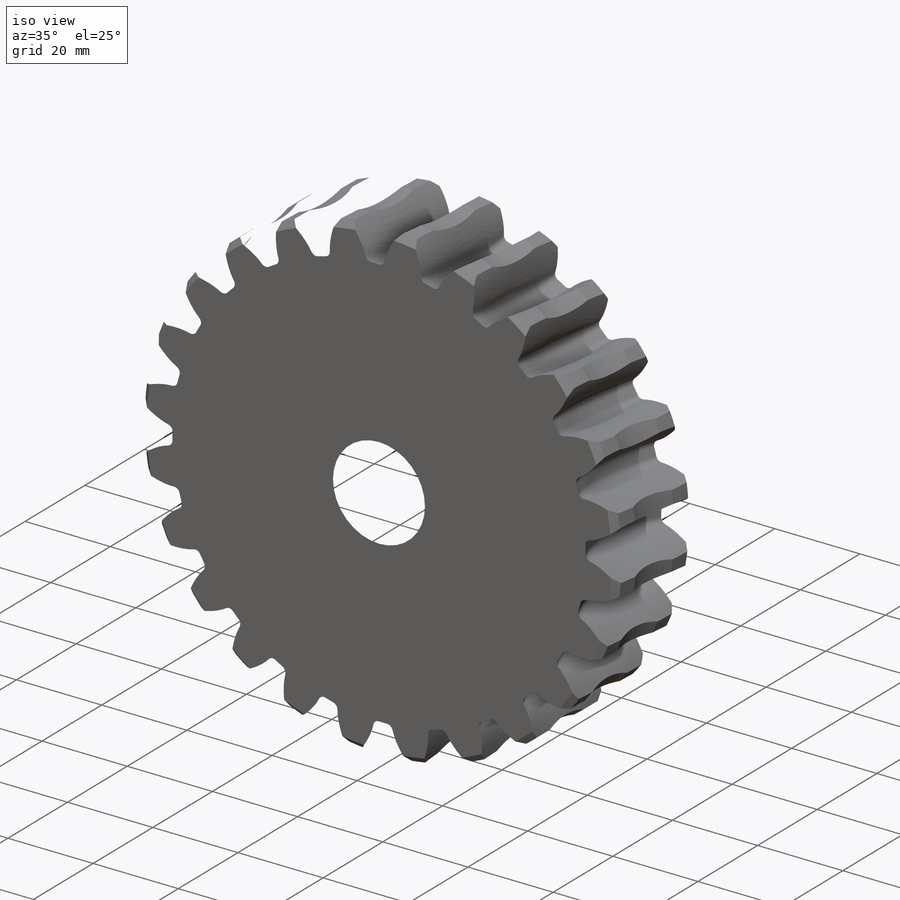
[diagram: iso view]
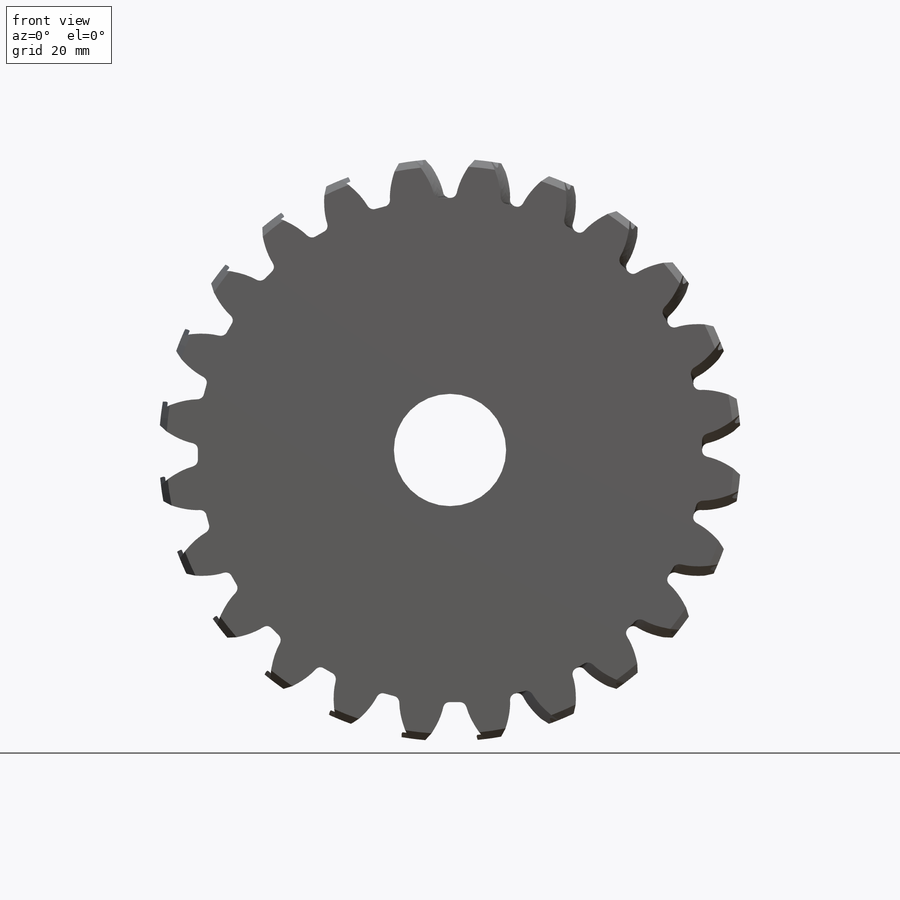
[diagram: front view]
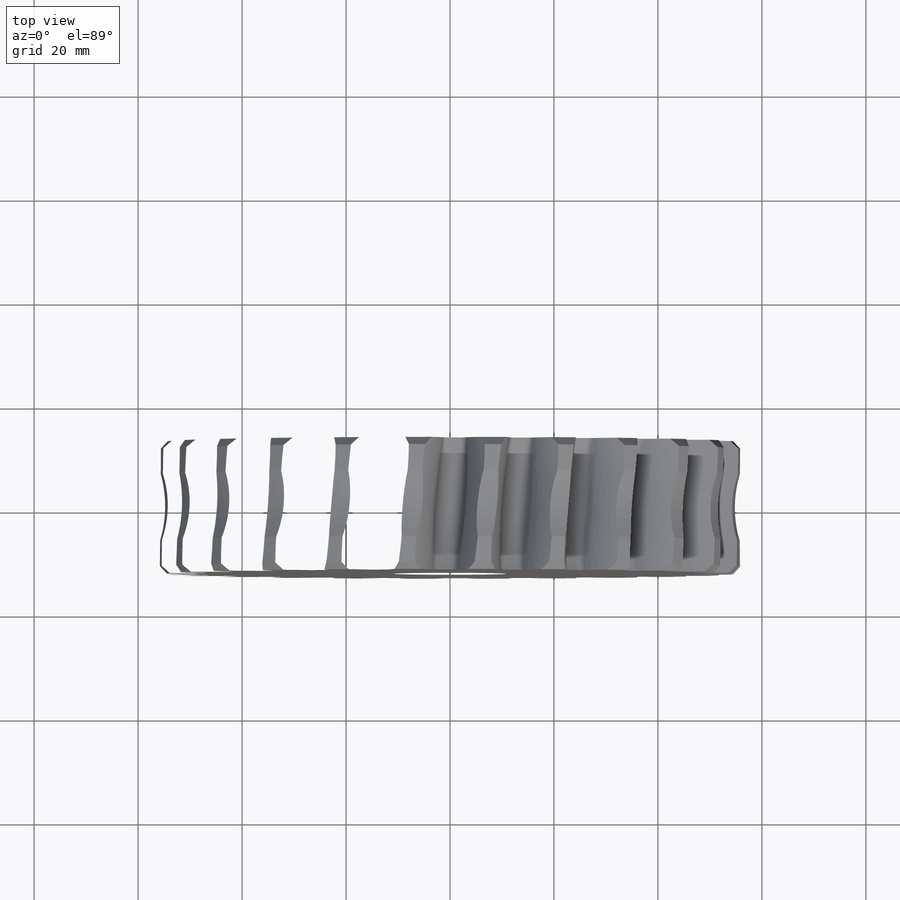
[diagram: top view]
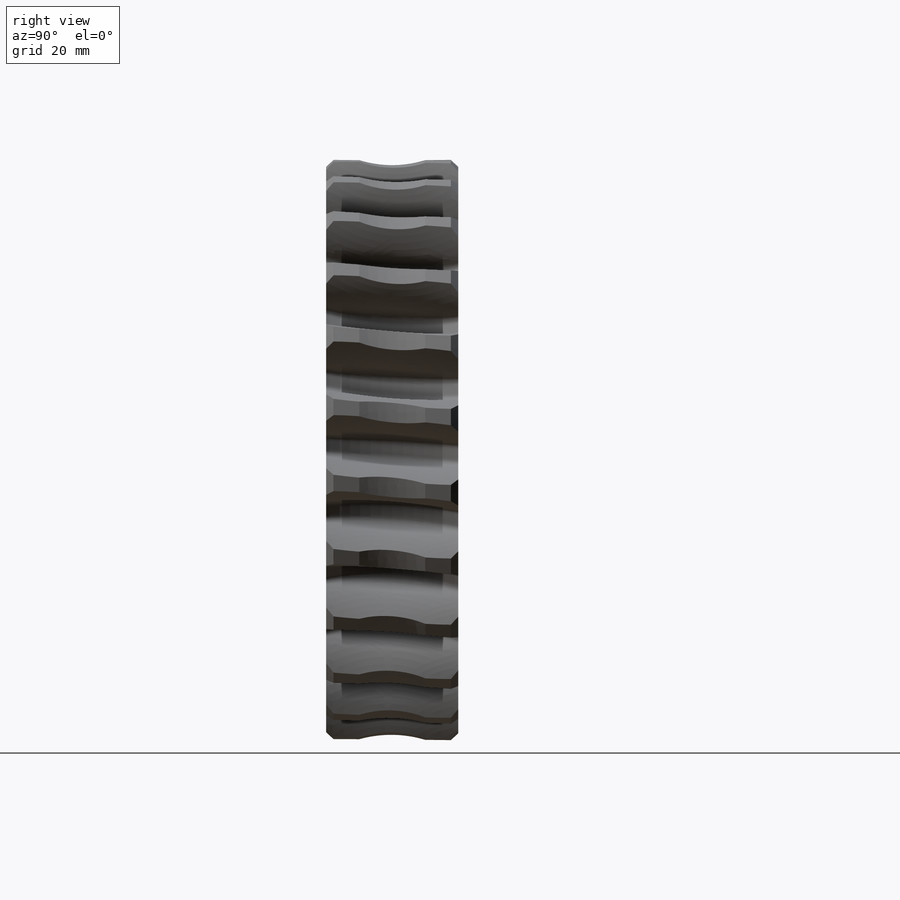
[diagram: right view]
SOLIDWORKS PART (.sldprt)
format: sldprt  version: not decoded by parser v0  size: 1,629,184 bytes
history: native  units: mm
features: sketch x13, plane x10, revolve x2, material x1, pattern_circular x1, cut_revolve x1, chamfer x1, fillet x1 + 2 further entries (+14 scaffold rows collapsed)
feature tree (46):
  scaffold x14  (default folders/planes/origin — collapsed)
  material  "Plain Carbon Steel"
  "Design Table"
  sketch  "SketchRevolveWorm01"  dims[ThroatDiameter=~42.630123mm Side1=12.7mm ChamferX=~1.41224mm ChamferY=~1.41224mm OutsideDiameter=~56.001175mm ThroatDistance=~20.347219mm FaceWidth=25.4mm]
  revolve  "Worm01"  Angle=360deg
  plane  "Plane1"  Offset=76.348395mm
  "Axis2"
  plane  "Plane2"
  sketch  "WheelToothSketch0"
  plane  "Plane3"
  sketch  "WheelToothSketch1"
  plane  "Plane4"
  sketch  "WheelToothSketch2"
  plane  "Plane5"
  sketch  "WheelToothSketch3"
  plane  "Plane6"
  sketch  "WheelToothSketch4"
  plane  "Plane7"
  sketch  "WheelToothSketch5"
  plane  "Plane8"
  sketch  "WheelToothSketch6"
  plane  "Plane9"
  sketch  "WheelToothSketch7"
  plane  "Plane10"
  sketch  "WheelToothSketch8"
  pattern_circular  "PatternWorm01"  Count=24 Angle=15deg
  sketch  "HubSketchSide1"  dims[HubRadius1=23.8125mm HubFace1=53.975mm HubComponentFace1=12.7mm D1=47.625mm]
  revolve  "HubRevolve1"  Angle=360deg
  sketch  "BoreRevolveSketch"  dims[BoreSide1=53.975mm TaperSide1=10.795mm Chamfer1X=1.27mm Chamfer1Y=1.27mm BoreSide2=12.7mm TaperSide2=10.795mm]
  cut_revolve  "BoreRevolveCut"  Angle=360deg
  sketch  "AuxiliarySketchWorm01"  dims[D1=101.6mm]
  chamfer  "Chamfer1"  Distance=1.27mm Angle=45deg
  fillet  "Fillet1"  Radius=1.27mm
decode coverage: 10 of 19 modeling features carry decoded parameters; 2 rows unclassified (native names shown)
note: ~ marks probable driven/reference dimensions
note: suppression state not decoded; provenance and decode notes live in map.json
